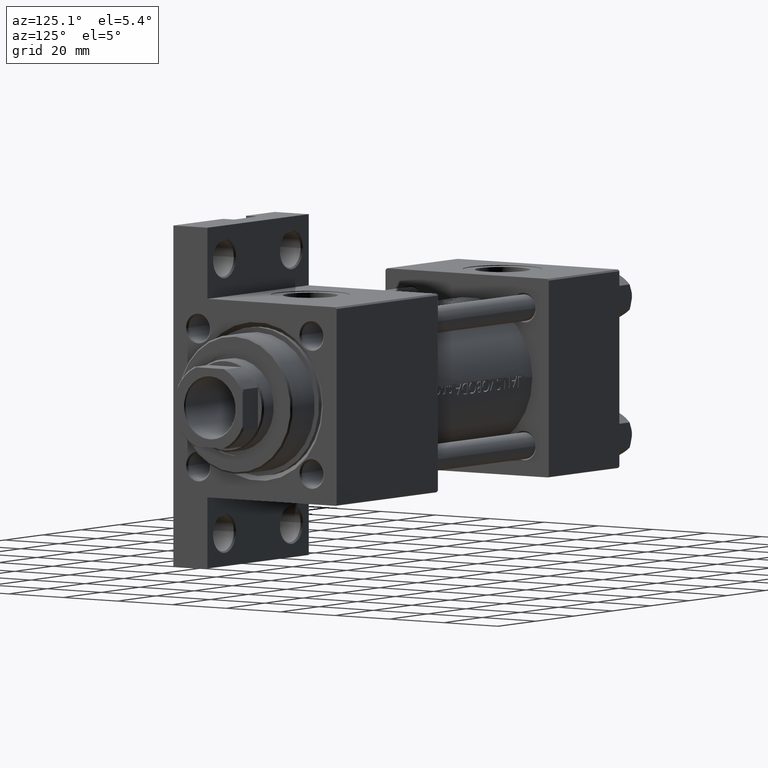
[diagram: clean part render]
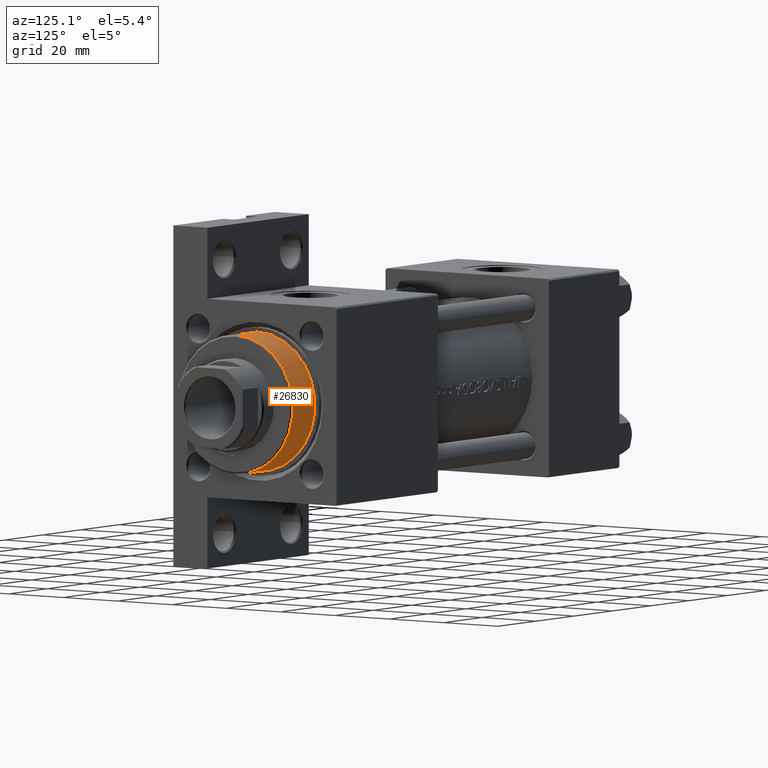
[diagram: same view with one face highlighted and labeled with its STEP entity id]
A machine part, auxiliary view. The second image highlights one B-rep face of the part: STEP entity #26830.
In plain terms, the highlighted cylindrical surface (partial cylindrical patch) has radius 21 mm, axis along (-1, 0, 0).
Its self-contained STEP definition (entity closure, byte-faithful):
#112 = ORIENTED_EDGE ( 'NONE', *, *, #24653, .F. ) ;
#867 = LINE ( 'NONE', #31414, #11205 ) ;
#2029 = FACE_OUTER_BOUND ( 'NONE', #17373, .T. ) ;
#6854 = LINE ( 'NONE', #22604, #34717 ) ;
#9172 = CARTESIAN_POINT ( 'NONE',  ( -21.00000000000000000, 0.000000000000000000, 28.69999999999999929 ) ) ;
#10146 = DIRECTION ( 'NONE',  ( -0.000000000000000000, -0.000000000000000000, -1.000000000000000000 ) ) ;
#10733 = CARTESIAN_POINT ( 'NONE',  ( 21.00000000000000000, 2.571758278209441661E-15, 28.69999999999999929 ) ) ;
#10748 = EDGE_CURVE ( 'NONE', #19667, #11144, #48688, .T. ) ;
#11144 = VERTEX_POINT ( 'NONE', #33819 ) ;
#11205 = VECTOR ( 'NONE', #38569, 1000.000000000000000 ) ;
#11899 = AXIS2_PLACEMENT_3D ( 'NONE', #47430, #32863, #33105 ) ;
#14297 = AXIS2_PLACEMENT_3D ( 'NONE', #24685, #10146, #47375 ) ;
#17373 = EDGE_LOOP ( 'NONE', ( #112, #41914, #48104, #47820 ) ) ;
#18670 = DIRECTION ( 'NONE',  ( -0.000000000000000000, -0.000000000000000000, -1.000000000000000000 ) ) ;
#19667 = VERTEX_POINT ( 'NONE', #32726 ) ;
#20146 = VERTEX_POINT ( 'NONE', #10733 ) ;
#21758 = EDGE_CURVE ( 'NONE', #11144, #27206, #6854, .T. ) ;
#22604 = CARTESIAN_POINT ( 'NONE',  ( -21.00000000000000000, 0.000000000000000000, 40.70000000000000284 ) ) ;
#24653 = EDGE_CURVE ( 'NONE', #19667, #20146, #867, .T. ) ;
#24685 = CARTESIAN_POINT ( 'NONE',  ( 0.000000000000000000, 0.000000000000000000, 40.70000000000000284 ) ) ;
#25625 = EDGE_CURVE ( 'NONE', #27206, #20146, #33156, .T. ) ;
#26830 = ADVANCED_FACE ( 'NONE', ( #2029 ), #36519, .T. ) ;
#27206 = VERTEX_POINT ( 'NONE', #9172 ) ;
#31414 = CARTESIAN_POINT ( 'NONE',  ( 21.00000000000000000, 2.571758278209441661E-15, 40.70000000000000284 ) ) ;
#32726 = CARTESIAN_POINT ( 'NONE',  ( 21.00000000000000000, 2.571758278209441661E-15, 40.19999999999998863 ) ) ;
#32863 = DIRECTION ( 'NONE',  ( 0.000000000000000000, 0.000000000000000000, 1.000000000000000000 ) ) ;
#33105 = DIRECTION ( 'NONE',  ( 1.000000000000000000, 0.000000000000000000, 0.000000000000000000 ) ) ;
#33156 = CIRCLE ( 'NONE', #11899, 21.00000000000000000 ) ;
#33819 = CARTESIAN_POINT ( 'NONE',  ( -21.00000000000000000, 0.000000000000000000, 40.19999999999998863 ) ) ;
#34717 = VECTOR ( 'NONE', #18670, 1000.000000000000000 ) ;
#36519 = CYLINDRICAL_SURFACE ( 'NONE', #14297, 21.00000000000000000 ) ;
#38569 = DIRECTION ( 'NONE',  ( -0.000000000000000000, -0.000000000000000000, -1.000000000000000000 ) ) ;
#41277 = DIRECTION ( 'NONE',  ( 0.000000000000000000, 0.000000000000000000, -1.000000000000000000 ) ) ;
#41914 = ORIENTED_EDGE ( 'NONE', *, *, #10748, .T. ) ;
#42391 = AXIS2_PLACEMENT_3D ( 'NONE', #44486, #41277, #48431 ) ;
#44486 = CARTESIAN_POINT ( 'NONE',  ( 0.000000000000000000, 0.000000000000000000, 40.19999999999998863 ) ) ;
#47375 = DIRECTION ( 'NONE',  ( -1.000000000000000000, 0.000000000000000000, 0.000000000000000000 ) ) ;
#47430 = CARTESIAN_POINT ( 'NONE',  ( 0.000000000000000000, 0.000000000000000000, 28.69999999999999929 ) ) ;
#47820 = ORIENTED_EDGE ( 'NONE', *, *, #25625, .T. ) ;
#48104 = ORIENTED_EDGE ( 'NONE', *, *, #21758, .T. ) ;
#48431 = DIRECTION ( 'NONE',  ( 1.000000000000000000, 0.000000000000000000, 0.000000000000000000 ) ) ;
#48688 = CIRCLE ( 'NONE', #42391, 21.00000000000000000 ) ;